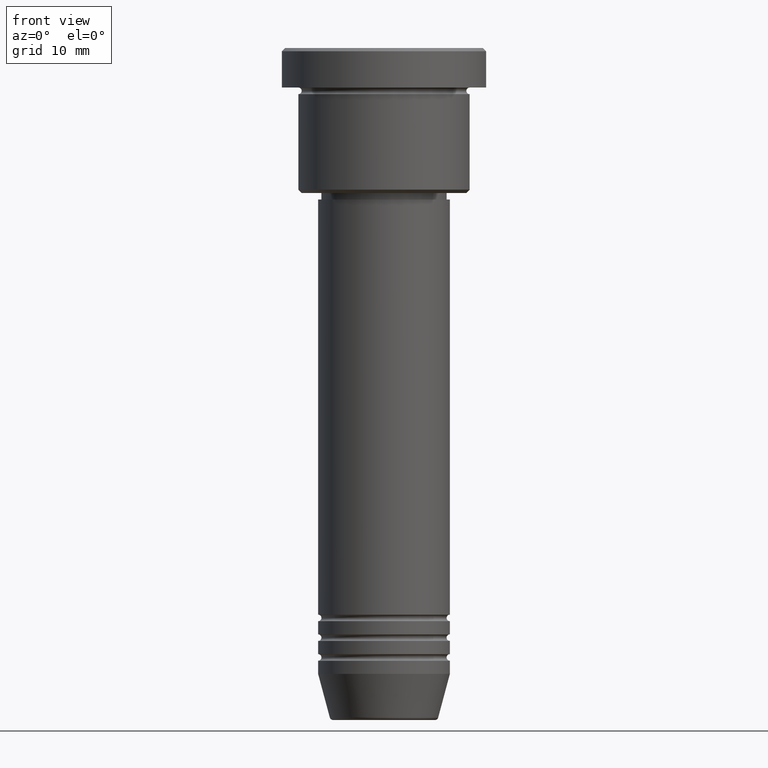
[diagram: clean part render]
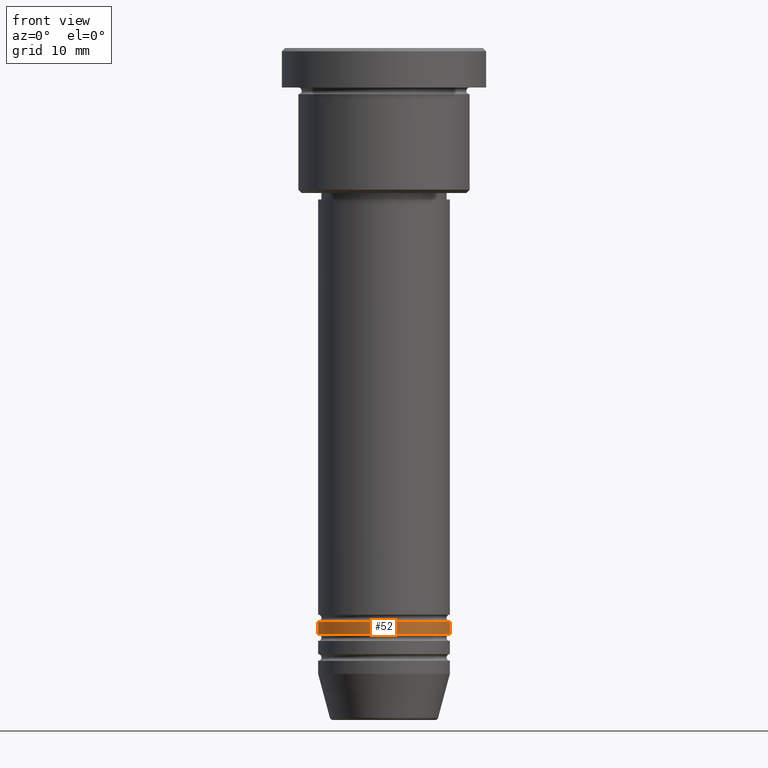
[diagram: same view with one face highlighted and labeled with its STEP entity id]
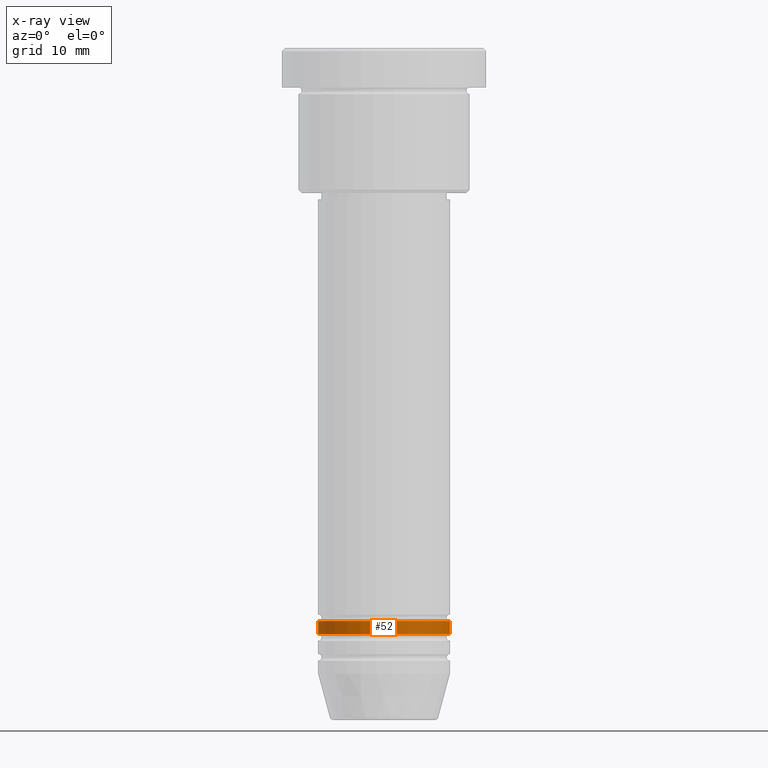
[diagram: x-ray of the same camera — body ghosted, the highlighted face saturated]
A machine part, front view. The second image highlights one B-rep face of the part: STEP entity #52.
The next image is the same camera in x-ray: the body ghosted, the highlighted face saturated — about 0% of this face is hidden behind the body in this view.
In plain terms, the highlighted cylindrical surface (partial cylindrical patch) has radius 10 mm, axis along (-0, -0, 1).
Its self-contained STEP definition (entity closure, byte-faithful):
#27 = CIRCLE ( 'NONE', #1149, 10.00000000000000000 ) ;
#35 = DIRECTION ( 'NONE',  ( 1.000000000000000000, 0.000000000000000000, 0.000000000000000000 ) ) ;
#52 = ADVANCED_FACE ( 'NONE', ( #865 ), #1049, .T. ) ;
#72 = ORIENTED_EDGE ( 'NONE', *, *, #462, .F. ) ;
#83 = CIRCLE ( 'NONE', #1059, 10.00000000000000000 ) ;
#124 = CARTESIAN_POINT ( 'NONE',  ( -10.00000000000000000, 1.224646799147353256E-15, -86.99999999999998579 ) ) ;
#158 = VECTOR ( 'NONE', #1098, 1000.000000000000000 ) ;
#186 = CARTESIAN_POINT ( 'NONE',  ( -10.00000000000000000, 1.224646799147353256E-15, -88.99999999999998579 ) ) ;
#208 = VERTEX_POINT ( 'NONE', #1070 ) ;
#217 = AXIS2_PLACEMENT_3D ( 'NONE', #1129, #785, #35 ) ;
#268 = DIRECTION ( 'NONE',  ( -0.000000000000000000, -0.000000000000000000, 1.000000000000000000 ) ) ;
#283 = VERTEX_POINT ( 'NONE', #810 ) ;
#287 = LINE ( 'NONE', #838, #158 ) ;
#301 = ORIENTED_EDGE ( 'NONE', *, *, #612, .F. ) ;
#321 = CARTESIAN_POINT ( 'NONE',  ( 0.000000000000000000, 0.000000000000000000, -88.99999999999998579 ) ) ;
#326 = CARTESIAN_POINT ( 'NONE',  ( -10.00000000000000000, 1.224646799147353256E-15, 0.000000000000000000 ) ) ;
#353 = EDGE_CURVE ( 'NONE', #283, #208, #287, .T. ) ;
#380 = VERTEX_POINT ( 'NONE', #186 ) ;
#456 = CARTESIAN_POINT ( 'NONE',  ( 0.000000000000000000, 0.000000000000000000, -86.99999999999998579 ) ) ;
#462 = EDGE_CURVE ( 'NONE', #380, #845, #573, .T. ) ;
#573 = LINE ( 'NONE', #326, #983 ) ;
#612 = EDGE_CURVE ( 'NONE', #845, #208, #27, .T. ) ;
#745 = EDGE_LOOP ( 'NONE', ( #72, #1101, #782, #301 ) ) ;
#761 = DIRECTION ( 'NONE',  ( -0.000000000000000000, -0.000000000000000000, 1.000000000000000000 ) ) ;
#782 = ORIENTED_EDGE ( 'NONE', *, *, #353, .T. ) ;
#785 = DIRECTION ( 'NONE',  ( -0.000000000000000000, -0.000000000000000000, 1.000000000000000000 ) ) ;
#810 = CARTESIAN_POINT ( 'NONE',  ( 10.00000000000000000, 0.000000000000000000, -88.99999999999998579 ) ) ;
#838 = CARTESIAN_POINT ( 'NONE',  ( 10.00000000000000000, 0.000000000000000000, 0.000000000000000000 ) ) ;
#845 = VERTEX_POINT ( 'NONE', #124 ) ;
#865 = FACE_OUTER_BOUND ( 'NONE', #745, .T. ) ;
#883 = DIRECTION ( 'NONE',  ( 1.000000000000000000, 0.000000000000000000, 0.000000000000000000 ) ) ;
#957 = DIRECTION ( 'NONE',  ( -0.000000000000000000, -0.000000000000000000, 1.000000000000000000 ) ) ;
#968 = EDGE_CURVE ( 'NONE', #380, #283, #83, .T. ) ;
#983 = VECTOR ( 'NONE', #761, 1000.000000000000000 ) ;
#1049 = CYLINDRICAL_SURFACE ( 'NONE', #217, 10.00000000000000000 ) ;
#1059 = AXIS2_PLACEMENT_3D ( 'NONE', #321, #957, #883 ) ;
#1070 = CARTESIAN_POINT ( 'NONE',  ( 10.00000000000000000, 0.000000000000000000, -86.99999999999998579 ) ) ;
#1081 = DIRECTION ( 'NONE',  ( 1.000000000000000000, 0.000000000000000000, 0.000000000000000000 ) ) ;
#1098 = DIRECTION ( 'NONE',  ( -0.000000000000000000, -0.000000000000000000, 1.000000000000000000 ) ) ;
#1101 = ORIENTED_EDGE ( 'NONE', *, *, #968, .T. ) ;
#1129 = CARTESIAN_POINT ( 'NONE',  ( 0.000000000000000000, 0.000000000000000000, 0.000000000000000000 ) ) ;
#1149 = AXIS2_PLACEMENT_3D ( 'NONE', #456, #268, #1081 ) ;